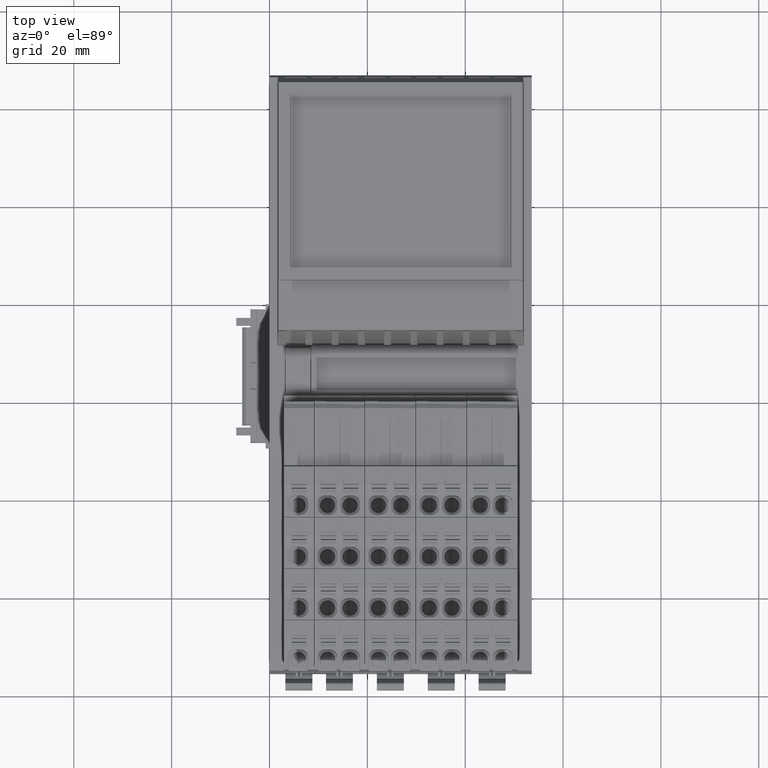
[diagram: clean part render]
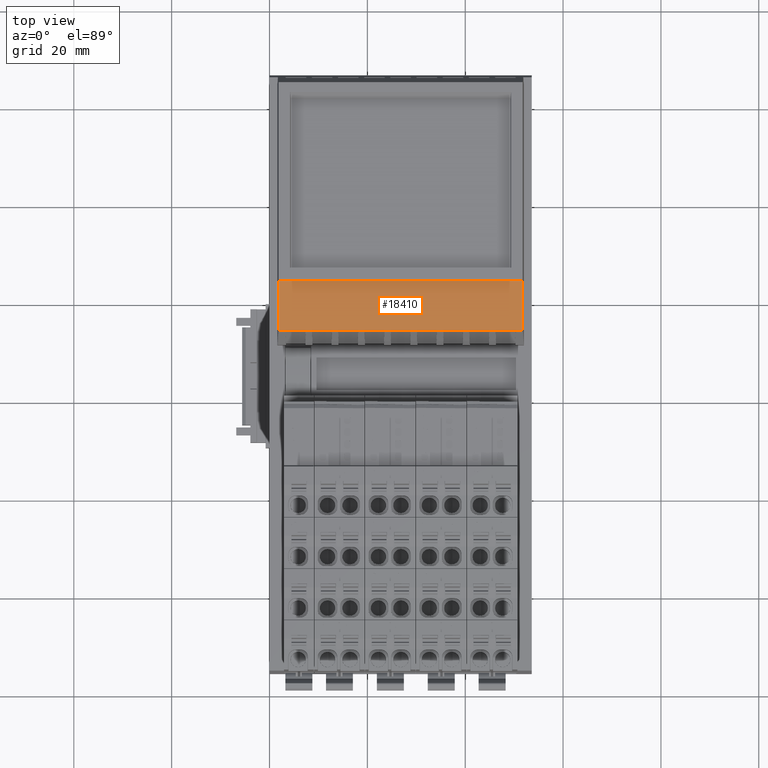
[diagram: same view with one face highlighted and labeled with its STEP entity id]
A machine part, top view. The second image highlights one B-rep face of the part: STEP entity #18410.
In plain terms, the highlighted planar face has unit normal (0, -0, -1).
Its self-contained STEP definition (entity closure, byte-faithful):
#3630=CARTESIAN_POINT('',(27.6198470334333,46.7969905354575,
1.85562909105626));
#3640=VERTEX_POINT('',#3630);
#3670=CARTESIAN_POINT('',(0.,43.4056997452584,1.85562909109318));
#3680=DIRECTION('',(-0.99254615164135,-0.121869343404921,
1.32659243286659E-12));
#3690=VECTOR('',#3680,1.);
#3700=LINE('',#3670,#3690);
#3710=CARTESIAN_POINT('',(37.6586581128557,48.0296015458293,
1.85562909104285));
#3720=VERTEX_POINT('',#3710);
#3730=EDGE_CURVE('',#3720,#3640,#3700,.T.);
#7890=CARTESIAN_POINT('',(37.6586581128419,48.029601545827,0.));
#7900=DIRECTION('',(7.45255700258407E-12,1.19993045138481E-12,1.));
#7910=VECTOR('',#7900,1.);
#7920=LINE('',#7890,#7910);
#7930=CARTESIAN_POINT('',(37.6586581124838,48.0296015457694,
-48.0556290312103));
#7940=VERTEX_POINT('',#7930);
#7950=EDGE_CURVE('',#7940,#3720,#7920,.T.);
#9900=CARTESIAN_POINT('',(0.,43.4056997452442,-48.0556290308664));
#9910=DIRECTION('',(-0.99254615164135,-0.121869343404921,
9.06302066893606E-12));
#9920=VECTOR('',#9910,1.);
#9930=LINE('',#9900,#9920);
#9940=CARTESIAN_POINT('',(27.6198470329879,46.7969905353886,
-48.0556290311186));
#9950=VERTEX_POINT('',#9940);
#9960=EDGE_CURVE('',#7940,#9950,#9930,.T.);
#18070=CARTESIAN_POINT('',(27.6198470334167,46.7969905354549,0.));
#18080=DIRECTION('',(-8.92248113562023E-12,-1.3804144406199E-12,-1.));
#18090=VECTOR('',#18080,1.);
#18100=LINE('',#18070,#18090);
#18110=EDGE_CURVE('',#3640,#9950,#18100,.T.);
#18300=CARTESIAN_POINT('',(28.8410155125553,46.9469311709381,
-56.4870681657621));
#18310=DIRECTION('',(0.121869343404921,-0.99254615164135,
2.827481231666E-13));
#18320=DIRECTION('',(0.99254615164135,0.121869343404921,
-3.12303297839627E-14));
#18330=AXIS2_PLACEMENT_3D('',#18300,#18310,#18320);
#18340=PLANE('',#18330);
#18350=ORIENTED_EDGE('',*,*,#7950,.F.);
#18360=ORIENTED_EDGE('',*,*,#3730,.F.);
#18370=ORIENTED_EDGE('',*,*,#18110,.F.);
#18380=ORIENTED_EDGE('',*,*,#9960,.T.);
#18390=EDGE_LOOP('',(#18380,#18370,#18360,#18350));
#18400=FACE_OUTER_BOUND('',#18390,.T.);
#18410=ADVANCED_FACE('',(#18400),#18340,.F.);